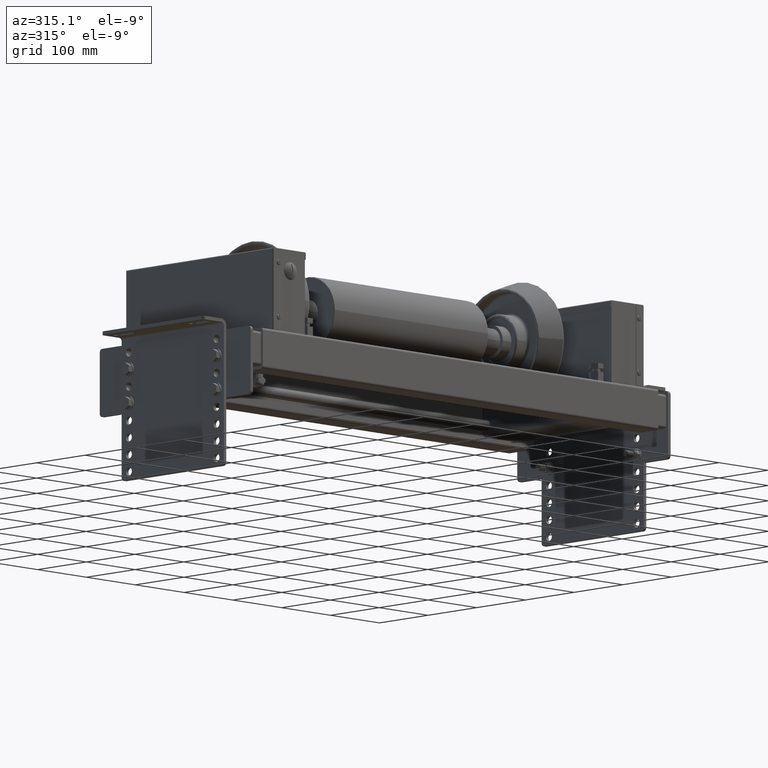
[diagram: clean part render]
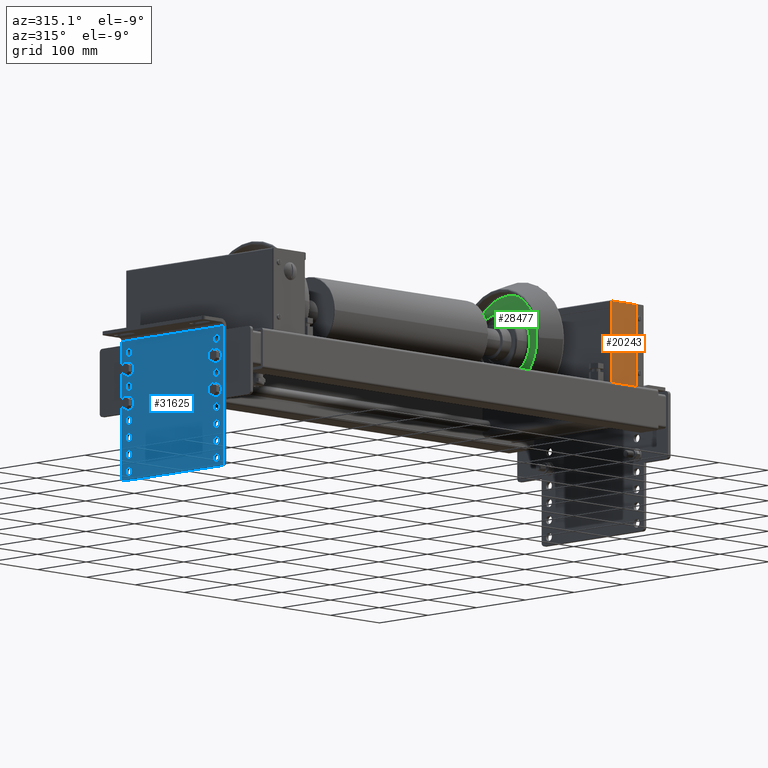
[diagram: same view with three faces highlighted in distinct colors, each labeled with its STEP entity id]
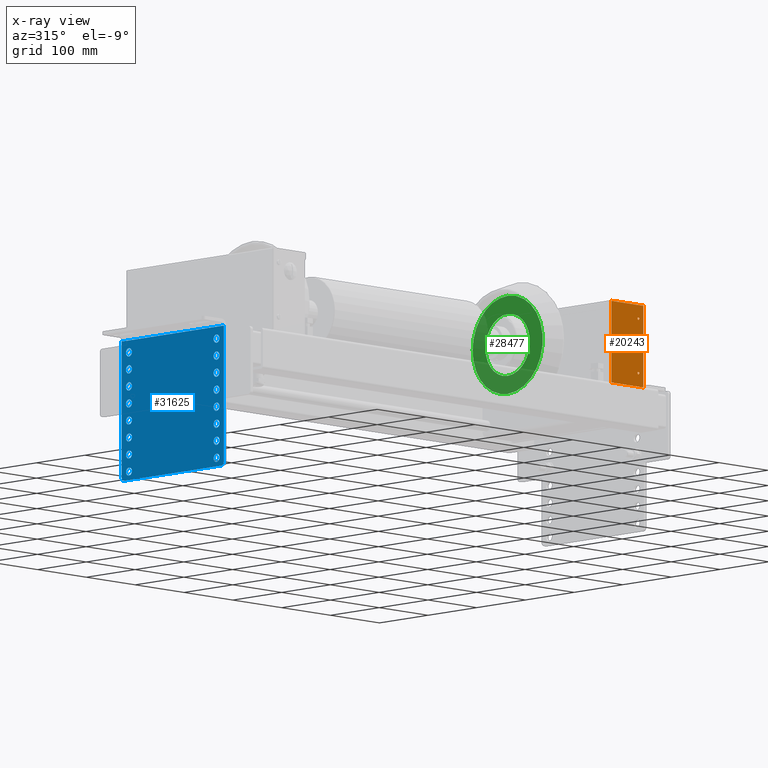
[diagram: x-ray of the same camera — body ghosted, the three highlighted faces saturated]
A machine part, auxiliary view with three faces highlighted in distinct colors.
The next image is the same camera in x-ray (body ghosted, the three faces saturated) — at least one of them is partly hidden behind the body in this view.
Their STEP definitions:

[orange] entity #20243 — the highlighted planar face has unit normal (0, -1, 0).
#19163=CARTESIAN_POINT('',(-150.000000000000910,65.000000000000227,55.250000000000000));
#19164=VERTEX_POINT('',#19163);
#19173=CARTESIAN_POINT('',(-150.000000000000910,65.000000000000227,51.750000000000000));
#19174=VERTEX_POINT('',#19173);
#19175=CARTESIAN_POINT('',(-150.000000000000910,65.000000000000227,53.500000000000000));
#19176=DIRECTION('',(1.0,0.0,0.0));
#19177=DIRECTION('',(0.0,0.0,1.0));
#19178=AXIS2_PLACEMENT_3D('',#19175,#19176,#19177);
#19179=CIRCLE('',#19178,1.750000000000000);
#19180=EDGE_CURVE('',#19174,#19164,#19179,.T.);
#19247=CARTESIAN_POINT('',(-150.000000000000940,-14.999999999999773,55.250000000000000));
#19248=VERTEX_POINT('',#19247);
#19257=CARTESIAN_POINT('',(-150.000000000000880,-14.999999999999773,51.750000000000000));
#19258=VERTEX_POINT('',#19257);
#19259=CARTESIAN_POINT('',(-150.000000000000880,-14.999999999999773,53.500000000000000));
#19260=DIRECTION('',(1.0,0.0,0.0));
#19261=DIRECTION('',(0.0,0.0,1.0));
#19262=AXIS2_PLACEMENT_3D('',#19259,#19260,#19261);
#19263=CIRCLE('',#19262,1.750000000000000);
#19264=EDGE_CURVE('',#19258,#19248,#19263,.T.);
#19484=CARTESIAN_POINT('',(-150.000000000000880,-14.999999999999773,53.500000000000000));
#19485=DIRECTION('',(1.0,0.0,0.0));
#19486=DIRECTION('',(0.0,0.0,1.0));
#19487=AXIS2_PLACEMENT_3D('',#19484,#19485,#19486);
#19488=CIRCLE('',#19487,1.750000000000000);
#19489=EDGE_CURVE('',#19248,#19258,#19488,.T.);
#19532=CARTESIAN_POINT('',(-150.000000000000910,65.000000000000227,53.500000000000000));
#19533=DIRECTION('',(1.0,0.0,0.0));
#19534=DIRECTION('',(0.0,0.0,1.0));
#19535=AXIS2_PLACEMENT_3D('',#19532,#19533,#19534);
#19536=CIRCLE('',#19535,1.750000000000000);
#19537=EDGE_CURVE('',#19164,#19174,#19536,.T.);
#19698=CARTESIAN_POINT('',(-150.000000000000910,-34.999999999999773,63.500000000000000));
#19699=VERTEX_POINT('',#19698);
#19700=CARTESIAN_POINT('',(-150.000000000000910,85.000000000000227,63.500000000000000));
#19701=VERTEX_POINT('',#19700);
#19702=CARTESIAN_POINT('',(-150.000000000000910,-34.999999999999773,63.500000000000000));
#19703=DIRECTION('',(0.0,1.0,0.0));
#19704=VECTOR('',#19703,120.0);
#19705=LINE('',#19702,#19704);
#19706=EDGE_CURVE('',#19699,#19701,#19705,.T.);
#19842=CARTESIAN_POINT('',(-150.000000000000910,85.000000000000227,-1.500000000000000));
#19843=VERTEX_POINT('',#19842);
#19850=CARTESIAN_POINT('',(-150.000000000000910,85.000000000000227,-1.500000000000000));
#19851=DIRECTION('',(0.0,0.0,1.0));
#19852=VECTOR('',#19851,65.0);
#19853=LINE('',#19850,#19852);
#19854=EDGE_CURVE('',#19843,#19701,#19853,.T.);
#19875=CARTESIAN_POINT('',(-150.000000000000910,-34.999999999999773,-1.500000000000000));
#19876=VERTEX_POINT('',#19875);
#19883=CARTESIAN_POINT('',(-150.000000000000910,85.000000000000227,-1.500000000000000));
#19884=DIRECTION('',(0.0,-1.0,0.0));
#19885=VECTOR('',#19884,120.0);
#19886=LINE('',#19883,#19885);
#19887=EDGE_CURVE('',#19843,#19876,#19886,.T.);
#20215=CARTESIAN_POINT('',(-150.000000000000910,-34.999999999999773,-1.500000000000000));
#20216=DIRECTION('',(0.0,0.0,1.0));
#20217=VECTOR('',#20216,65.0);
#20218=LINE('',#20215,#20217);
#20219=EDGE_CURVE('',#19876,#19699,#20218,.T.);
#20224=CARTESIAN_POINT('',(-150.000000000000910,-94.999999999999773,-1.500000000000000));
#20225=DIRECTION('',(-1.0,0.0,0.0));
#20226=DIRECTION('',(0.0,0.0,1.0));
#20227=AXIS2_PLACEMENT_3D('',#20224,#20225,#20226);
#20228=PLANE('',#20227);
#20229=ORIENTED_EDGE('',*,*,#19854,.F.);
#20230=ORIENTED_EDGE('',*,*,#19887,.T.);
#20231=ORIENTED_EDGE('',*,*,#20219,.T.);
#20232=ORIENTED_EDGE('',*,*,#19706,.T.);
#20233=EDGE_LOOP('',(#20229,#20230,#20231,#20232));
#20234=FACE_OUTER_BOUND('',#20233,.T.);
#20235=ORIENTED_EDGE('',*,*,#19489,.T.);
#20236=ORIENTED_EDGE('',*,*,#19264,.T.);
#20237=EDGE_LOOP('',(#20235,#20236));
#20238=FACE_BOUND('',#20237,.T.);
#20239=ORIENTED_EDGE('',*,*,#19537,.T.);
#20240=ORIENTED_EDGE('',*,*,#19180,.T.);
#20241=EDGE_LOOP('',(#20239,#20240));
#20242=FACE_BOUND('',#20241,.T.);
#20243=ADVANCED_FACE('',(#20234,#20238,#20242),#20228,.T.);

[blue] entity #31625 — the highlighted planar face has unit normal (-1, -0, -0).
#30377=CARTESIAN_POINT('',(-80.957093014422583,-114.089066365486590,4.500000000000000));
#30378=VERTEX_POINT('',#30377);
#30387=CARTESIAN_POINT('',(-92.957093014422583,-114.089066365486590,4.500000000000000));
#30388=VERTEX_POINT('',#30387);
#30389=CARTESIAN_POINT('',(-86.957093014422583,-114.089066365486590,4.500000000000000));
#30390=DIRECTION('',(0.0,0.0,-1.0));
#30391=DIRECTION('',(1.0,0.0,0.0));
#30392=AXIS2_PLACEMENT_3D('',#30389,#30390,#30391);
#30393=CIRCLE('',#30392,6.0);
#30394=EDGE_CURVE('',#30388,#30378,#30393,.T.);
#30419=CARTESIAN_POINT('',(99.042906985577417,-114.089066365486590,4.500000000000000));
#30420=VERTEX_POINT('',#30419);
#30429=CARTESIAN_POINT('',(87.042906985577417,-114.089066365486590,4.500000000000000));
#30430=VERTEX_POINT('',#30429);
#30431=CARTESIAN_POINT('',(93.042906985577417,-114.089066365486590,4.500000000000000));
#30432=DIRECTION('',(0.0,0.0,-1.0));
#30433=DIRECTION('',(1.0,0.0,0.0));
#30434=AXIS2_PLACEMENT_3D('',#30431,#30432,#30433);
#30435=CIRCLE('',#30434,6.0);
#30436=EDGE_CURVE('',#30430,#30420,#30435,.T.);
#30461=CARTESIAN_POINT('',(-80.957093014422583,-89.089066365486588,4.500000000000000));
#30462=VERTEX_POINT('',#30461);
#30471=CARTESIAN_POINT('',(-92.957093014422583,-89.089066365486588,4.500000000000000));
#30472=VERTEX_POINT('',#30471);
#30473=CARTESIAN_POINT('',(-86.957093014422583,-89.089066365486588,4.500000000000000));
#30474=DIRECTION('',(0.0,0.0,-1.0));
#30475=DIRECTION('',(1.0,0.0,0.0));
#30476=AXIS2_PLACEMENT_3D('',#30473,#30474,#30475);
#30477=CIRCLE('',#30476,6.0);
#30478=EDGE_CURVE('',#30472,#30462,#30477,.T.);
#30503=CARTESIAN_POINT('',(99.042906985577417,-89.089066365486588,4.500000000000000));
#30504=VERTEX_POINT('',#30503);
#30513=CARTESIAN_POINT('',(87.042906985577417,-89.089066365486588,4.500000000000000));
#30514=VERTEX_POINT('',#30513);
#30515=CARTESIAN_POINT('',(93.042906985577417,-89.089066365486588,4.500000000000000));
#30516=DIRECTION('',(0.0,0.0,-1.0));
#30517=DIRECTION('',(1.0,0.0,0.0));
#30518=AXIS2_PLACEMENT_3D('',#30515,#30516,#30517);
#30519=CIRCLE('',#30518,6.0);
#30520=EDGE_CURVE('',#30514,#30504,#30519,.T.);
#30545=CARTESIAN_POINT('',(-80.957093014422568,-64.089066365486588,4.500000000000000));
#30546=VERTEX_POINT('',#30545);
#30555=CARTESIAN_POINT('',(-92.957093014422568,-64.089066365486588,4.500000000000000));
#30556=VERTEX_POINT('',#30555);
#30557=CARTESIAN_POINT('',(-86.957093014422568,-64.089066365486588,4.500000000000000));
#30558=DIRECTION('',(0.0,0.0,-1.0));
#30559=DIRECTION('',(1.0,0.0,0.0));
#30560=AXIS2_PLACEMENT_3D('',#30557,#30558,#30559);
#30561=CIRCLE('',#30560,6.0);
#30562=EDGE_CURVE('',#30556,#30546,#30561,.T.);
#30587=CARTESIAN_POINT('',(99.042906985577417,-64.089066365486588,4.500000000000000));
#30588=VERTEX_POINT('',#30587);
#30597=CARTESIAN_POINT('',(87.042906985577417,-64.089066365486588,4.500000000000000));
#30598=VERTEX_POINT('',#30597);
#30599=CARTESIAN_POINT('',(93.042906985577417,-64.089066365486588,4.500000000000000));
#30600=DIRECTION('',(0.0,0.0,-1.0));
#30601=DIRECTION('',(1.0,0.0,0.0));
#30602=AXIS2_PLACEMENT_3D('',#30599,#30600,#30601);
#30603=CIRCLE('',#30602,6.0);
#30604=EDGE_CURVE('',#30598,#30588,#30603,.T.);
#30629=CARTESIAN_POINT('',(-80.957093014422568,-39.089066365486588,4.500000000000000));
#30630=VERTEX_POINT('',#30629);
#30639=CARTESIAN_POINT('',(-92.957093014422568,-39.089066365486588,4.500000000000000));
#30640=VERTEX_POINT('',#30639);
#30641=CARTESIAN_POINT('',(-86.957093014422568,-39.089066365486588,4.500000000000000));
#30642=DIRECTION('',(0.0,0.0,-1.0));
#30643=DIRECTION('',(1.0,0.0,0.0));
#30644=AXIS2_PLACEMENT_3D('',#30641,#30642,#30643);
#30645=CIRCLE('',#30644,6.0);
#30646=EDGE_CURVE('',#30640,#30630,#30645,.T.);
#30671=CARTESIAN_POINT('',(99.042906985577446,-39.089066365486588,4.500000000000000));
#30672=VERTEX_POINT('',#30671);
#30681=CARTESIAN_POINT('',(87.042906985577446,-39.089066365486588,4.500000000000000));
#30682=VERTEX_POINT('',#30681);
#30683=CARTESIAN_POINT('',(93.042906985577446,-39.089066365486588,4.500000000000000));
#30684=DIRECTION('',(0.0,0.0,-1.0));
#30685=DIRECTION('',(1.0,0.0,0.0));
#30686=AXIS2_PLACEMENT_3D('',#30683,#30684,#30685);
#30687=CIRCLE('',#30686,6.0);
#30688=EDGE_CURVE('',#30682,#30672,#30687,.T.);
#30713=CARTESIAN_POINT('',(-80.957093014422554,-14.089066365486588,4.500000000000000));
#30714=VERTEX_POINT('',#30713);
#30723=CARTESIAN_POINT('',(-92.957093014422554,-14.089066365486588,4.500000000000000));
#30724=VERTEX_POINT('',#30723);
#30725=CARTESIAN_POINT('',(-86.957093014422554,-14.089066365486588,4.500000000000000));
#30726=DIRECTION('',(0.0,0.0,-1.0));
#30727=DIRECTION('',(1.0,0.0,0.0));
#30728=AXIS2_PLACEMENT_3D('',#30725,#30726,#30727);
#30729=CIRCLE('',#30728,6.0);
#30730=EDGE_CURVE('',#30724,#30714,#30729,.T.);
#30755=CARTESIAN_POINT('',(99.042906985577446,-14.089066365486588,4.500000000000000));
#30756=VERTEX_POINT('',#30755);
#30765=CARTESIAN_POINT('',(87.042906985577446,-14.089066365486588,4.500000000000000));
#30766=VERTEX_POINT('',#30765);
#30767=CARTESIAN_POINT('',(93.042906985577446,-14.089066365486588,4.500000000000000));
#30768=DIRECTION('',(0.0,0.0,-1.0));
#30769=DIRECTION('',(1.0,0.0,0.0));
#30770=AXIS2_PLACEMENT_3D('',#30767,#30768,#30769);
#30771=CIRCLE('',#30770,6.0);
#30772=EDGE_CURVE('',#30766,#30756,#30771,.T.);
#30797=CARTESIAN_POINT('',(-80.957093014422554,10.910933634513412,4.500000000000000));
#30798=VERTEX_POINT('',#30797);
#30807=CARTESIAN_POINT('',(-92.957093014422554,10.910933634513412,4.500000000000000));
#30808=VERTEX_POINT('',#30807);
#30809=CARTESIAN_POINT('',(-86.957093014422554,10.910933634513412,4.500000000000000));
#30810=DIRECTION('',(0.0,0.0,-1.0));
#30811=DIRECTION('',(1.0,0.0,0.0));
#30812=AXIS2_PLACEMENT_3D('',#30809,#30810,#30811);
#30813=CIRCLE('',#30812,6.0);
#30814=EDGE_CURVE('',#30808,#30798,#30813,.T.);
#30839=CARTESIAN_POINT('',(99.042906985577446,10.910933634513412,4.500000000000000));
#30840=VERTEX_POINT('',#30839);
#30849=CARTESIAN_POINT('',(87.042906985577446,10.910933634513412,4.500000000000000));
#30850=VERTEX_POINT('',#30849);
#30851=CARTESIAN_POINT('',(93.042906985577446,10.910933634513412,4.500000000000000));
#30852=DIRECTION('',(0.0,0.0,-1.0));
#30853=DIRECTION('',(1.0,0.0,0.0));
#30854=AXIS2_PLACEMENT_3D('',#30851,#30852,#30853);
#30855=CIRCLE('',#30854,6.0);
#30856=EDGE_CURVE('',#30850,#30840,#30855,.T.);
#30881=CARTESIAN_POINT('',(-80.957093014422554,35.910933634513412,4.500000000000000));
#30882=VERTEX_POINT('',#30881);
#30891=CARTESIAN_POINT('',(-92.957093014422554,35.910933634513412,4.500000000000000));
#30892=VERTEX_POINT('',#30891);
#30893=CARTESIAN_POINT('',(-86.957093014422554,35.910933634513412,4.500000000000000));
#30894=DIRECTION('',(0.0,0.0,-1.0));
#30895=DIRECTION('',(1.0,0.0,0.0));
#30896=AXIS2_PLACEMENT_3D('',#30893,#30894,#30895);
#30897=CIRCLE('',#30896,6.0);
#30898=EDGE_CURVE('',#30892,#30882,#30897,.T.);
#30923=CARTESIAN_POINT('',(99.042906985577446,35.910933634513412,4.500000000000000));
#30924=VERTEX_POINT('',#30923);
#30933=CARTESIAN_POINT('',(87.042906985577446,35.910933634513412,4.500000000000000));
#30934=VERTEX_POINT('',#30933);
#30935=CARTESIAN_POINT('',(93.042906985577446,35.910933634513412,4.500000000000000));
#30936=DIRECTION('',(0.0,0.0,-1.0));
#30937=DIRECTION('',(1.0,0.0,0.0));
#30938=AXIS2_PLACEMENT_3D('',#30935,#30936,#30937);
#30939=CIRCLE('',#30938,6.0);
#30940=EDGE_CURVE('',#30934,#30924,#30939,.T.);
#30965=CARTESIAN_POINT('',(-80.957093014422540,60.910933634513412,4.500000000000000));
#30966=VERTEX_POINT('',#30965);
#30975=CARTESIAN_POINT('',(-92.957093014422540,60.910933634513412,4.500000000000000));
#30976=VERTEX_POINT('',#30975);
#30977=CARTESIAN_POINT('',(-86.957093014422540,60.910933634513412,4.500000000000000));
#30978=DIRECTION('',(0.0,0.0,-1.0));
#30979=DIRECTION('',(1.0,0.0,0.0));
#30980=AXIS2_PLACEMENT_3D('',#30977,#30978,#30979);
#30981=CIRCLE('',#30980,6.0);
#30982=EDGE_CURVE('',#30976,#30966,#30981,.T.);
#31007=CARTESIAN_POINT('',(99.042906985577446,60.910933634513412,4.500000000000000));
#31008=VERTEX_POINT('',#31007);
#31017=CARTESIAN_POINT('',(87.042906985577446,60.910933634513412,4.500000000000000));
#31018=VERTEX_POINT('',#31017);
#31019=CARTESIAN_POINT('',(93.042906985577446,60.910933634513412,4.500000000000000));
#31020=DIRECTION('',(0.0,0.0,-1.0));
#31021=DIRECTION('',(1.0,0.0,0.0));
#31022=AXIS2_PLACEMENT_3D('',#31019,#31020,#31021);
#31023=CIRCLE('',#31022,6.0);
#31024=EDGE_CURVE('',#31018,#31008,#31023,.T.);
#31049=CARTESIAN_POINT('',(108.042906985577450,-121.589066365486590,4.500000000000000));
#31050=VERTEX_POINT('',#31049);
#31051=CARTESIAN_POINT('',(103.042906985577450,-126.589066365486590,4.500000000000000));
#31052=VERTEX_POINT('',#31051);
#31053=CARTESIAN_POINT('',(103.042906985577450,-121.589066365486590,4.500000000000000));
#31054=DIRECTION('',(0.0,0.0,-1.000000000000000));
#31055=DIRECTION('',(0.707106781186547,-0.707106781186547,0.0));
#31056=AXIS2_PLACEMENT_3D('',#31053,#31054,#31055);
#31057=CIRCLE('',#31056,4.999999999999999);
#31058=EDGE_CURVE('',#31050,#31052,#31057,.T.);
#31133=CARTESIAN_POINT('',(108.042906985577450,78.410933634513441,4.500000000000000));
#31134=VERTEX_POINT('',#31133);
#31142=CARTESIAN_POINT('',(108.042906985577450,78.410933634513441,4.500000000000000));
#31143=DIRECTION('',(0.0,-1.0,0.0));
#31144=VECTOR('',#31143,200.000000000000030);
#31145=LINE('',#31142,#31144);
#31146=EDGE_CURVE('',#31134,#31050,#31145,.T.);
#31357=CARTESIAN_POINT('',(-96.957093014422583,-126.589066365486590,4.500000000000000));
#31358=VERTEX_POINT('',#31357);
#31359=CARTESIAN_POINT('',(-101.957093014422580,-121.589066365486590,4.500000000000000));
#31360=VERTEX_POINT('',#31359);
#31361=CARTESIAN_POINT('',(-96.957093014422583,-121.589066365486590,4.500000000000000));
#31362=DIRECTION('',(0.0,0.0,-1.000000000000000));
#31363=DIRECTION('',(-0.707106781186547,-0.707106781186547,0.0));
#31364=AXIS2_PLACEMENT_3D('',#31361,#31362,#31363);
#31365=CIRCLE('',#31364,4.999999999999999);
#31366=EDGE_CURVE('',#31358,#31360,#31365,.T.);
#31390=CARTESIAN_POINT('',(-101.957093014422580,78.410933634513441,4.500000000000000));
#31391=VERTEX_POINT('',#31390);
#31392=CARTESIAN_POINT('',(-101.957093014422580,-121.589066365486590,4.500000000000000));
#31393=DIRECTION('',(0.0,1.0,0.0));
#31394=VECTOR('',#31393,200.000000000000030);
#31395=LINE('',#31392,#31394);
#31396=EDGE_CURVE('',#31360,#31391,#31395,.T.);
#31442=CARTESIAN_POINT('',(3.042906985577439,-19.089066365486580,4.500000000000000));
#31443=DIRECTION('',(0.0,0.0,1.0));
#31444=DIRECTION('',(1.0,0.0,0.0));
#31445=AXIS2_PLACEMENT_3D('',#31442,#31443,#31444);
#31446=PLANE('',#31445);
#31447=ORIENTED_EDGE('',*,*,#31058,.F.);
#31448=ORIENTED_EDGE('',*,*,#31146,.F.);
#31449=CARTESIAN_POINT('',(-101.957093014422580,78.410933634513441,4.500000000000000));
#31450=DIRECTION('',(1.0,0.0,0.0));
#31451=VECTOR('',#31450,210.000000000000030);
#31452=LINE('',#31449,#31451);
#31453=EDGE_CURVE('',#31391,#31134,#31452,.T.);
#31454=ORIENTED_EDGE('',*,*,#31453,.F.);
#31455=ORIENTED_EDGE('',*,*,#31396,.F.);
#31456=ORIENTED_EDGE('',*,*,#31366,.F.);
#31457=CARTESIAN_POINT('',(103.042906985577450,-126.589066365486590,4.500000000000000));
#31458=DIRECTION('',(-1.0,0.0,0.0));
#31459=VECTOR('',#31458,200.000000000000030);
#31460=LINE('',#31457,#31459);
#31461=EDGE_CURVE('',#31052,#31358,#31460,.T.);
#31462=ORIENTED_EDGE('',*,*,#31461,.F.);
#31463=EDGE_LOOP('',(#31447,#31448,#31454,#31455,#31456,#31462));
#31464=FACE_OUTER_BOUND('',#31463,.T.);
#31465=CARTESIAN_POINT('',(-86.957093014422583,-114.089066365486590,4.500000000000000));
#31466=DIRECTION('',(0.0,0.0,-1.0));
#31467=DIRECTION('',(1.0,0.0,0.0));
#31468=AXIS2_PLACEMENT_3D('',#31465,#31466,#31467);
#31469=CIRCLE('',#31468,6.0);
#31470=EDGE_CURVE('',#30378,#30388,#31469,.T.);
#31471=ORIENTED_EDGE('',*,*,#31470,.T.);
#31472=ORIENTED_EDGE('',*,*,#30394,.T.);
#31473=EDGE_LOOP('',(#31471,#31472));
#31474=FACE_BOUND('',#31473,.T.);
#31475=CARTESIAN_POINT('',(93.042906985577417,-114.089066365486590,4.500000000000000));
#31476=DIRECTION('',(0.0,0.0,-1.0));
#31477=DIRECTION('',(1.0,0.0,0.0));
#31478=AXIS2_PLACEMENT_3D('',#31475,#31476,#31477);
#31479=CIRCLE('',#31478,6.0);
#31480=EDGE_CURVE('',#30420,#30430,#31479,.T.);
#31481=ORIENTED_EDGE('',*,*,#31480,.T.);
#31482=ORIENTED_EDGE('',*,*,#30436,.T.);
#31483=EDGE_LOOP('',(#31481,#31482));
#31484=FACE_BOUND('',#31483,.T.);
#31485=CARTESIAN_POINT('',(-86.957093014422583,-89.089066365486588,4.500000000000000));
#31486=DIRECTION('',(0.0,0.0,-1.0));
#31487=DIRECTION('',(1.0,0.0,0.0));
#31488=AXIS2_PLACEMENT_3D('',#31485,#31486,#31487);
#31489=CIRCLE('',#31488,6.0);
#31490=EDGE_CURVE('',#30462,#30472,#31489,.T.);
#31491=ORIENTED_EDGE('',*,*,#31490,.T.);
#31492=ORIENTED_EDGE('',*,*,#30478,.T.);
#31493=EDGE_LOOP('',(#31491,#31492));
#31494=FACE_BOUND('',#31493,.T.);
#31495=CARTESIAN_POINT('',(93.042906985577417,-89.089066365486588,4.500000000000000));
#31496=DIRECTION('',(0.0,0.0,-1.0));
#31497=DIRECTION('',(1.0,0.0,0.0));
#31498=AXIS2_PLACEMENT_3D('',#31495,#31496,#31497);
#31499=CIRCLE('',#31498,6.0);
#31500=EDGE_CURVE('',#30504,#30514,#31499,.T.);
#31501=ORIENTED_EDGE('',*,*,#31500,.T.);
#31502=ORIENTED_EDGE('',*,*,#30520,.T.);
#31503=EDGE_LOOP('',(#31501,#31502));
#31504=FACE_BOUND('',#31503,.T.);
#31505=CARTESIAN_POINT('',(-86.957093014422568,-64.089066365486588,4.500000000000000));
#31506=DIRECTION('',(0.0,0.0,-1.0));
#31507=DIRECTION('',(1.0,0.0,0.0));
#31508=AXIS2_PLACEMENT_3D('',#31505,#31506,#31507);
#31509=CIRCLE('',#31508,6.0);
#31510=EDGE_CURVE('',#30546,#30556,#31509,.T.);
#31511=ORIENTED_EDGE('',*,*,#31510,.T.);
#31512=ORIENTED_EDGE('',*,*,#30562,.T.);
#31513=EDGE_LOOP('',(#31511,#31512));
#31514=FACE_BOUND('',#31513,.T.);
#31515=CARTESIAN_POINT('',(93.042906985577417,-64.089066365486588,4.500000000000000));
#31516=DIRECTION('',(0.0,0.0,-1.0));
#31517=DIRECTION('',(1.0,0.0,0.0));
#31518=AXIS2_PLACEMENT_3D('',#31515,#31516,#31517);
#31519=CIRCLE('',#31518,6.0);
#31520=EDGE_CURVE('',#30588,#30598,#31519,.T.);
#31521=ORIENTED_EDGE('',*,*,#31520,.T.);
#31522=ORIENTED_EDGE('',*,*,#30604,.T.);
#31523=EDGE_LOOP('',(#31521,#31522));
#31524=FACE_BOUND('',#31523,.T.);
#31525=CARTESIAN_POINT('',(-86.957093014422568,-39.089066365486588,4.500000000000000));
#31526=DIRECTION('',(0.0,0.0,-1.0));
#31527=DIRECTION('',(1.0,0.0,0.0));
#31528=AXIS2_PLACEMENT_3D('',#31525,#31526,#31527);
#31529=CIRCLE('',#31528,6.0);
#31530=EDGE_CURVE('',#30630,#30640,#31529,.T.);
#31531=ORIENTED_EDGE('',*,*,#31530,.T.);
#31532=ORIENTED_EDGE('',*,*,#30646,.T.);
#31533=EDGE_LOOP('',(#31531,#31532));
#31534=FACE_BOUND('',#31533,.T.);
#31535=CARTESIAN_POINT('',(93.042906985577446,-39.089066365486588,4.500000000000000));
#31536=DIRECTION('',(0.0,0.0,-1.0));
#31537=DIRECTION('',(1.0,0.0,0.0));
#31538=AXIS2_PLACEMENT_3D('',#31535,#31536,#31537);
#31539=CIRCLE('',#31538,6.0);
#31540=EDGE_CURVE('',#30672,#30682,#31539,.T.);
#31541=ORIENTED_EDGE('',*,*,#31540,.T.);
#31542=ORIENTED_EDGE('',*,*,#30688,.T.);
#31543=EDGE_LOOP('',(#31541,#31542));
#31544=FACE_BOUND('',#31543,.T.);
#31545=CARTESIAN_POINT('',(-86.957093014422554,-14.089066365486588,4.500000000000000));
#31546=DIRECTION('',(0.0,0.0,-1.0));
#31547=DIRECTION('',(1.0,0.0,0.0));
#31548=AXIS2_PLACEMENT_3D('',#31545,#31546,#31547);
#31549=CIRCLE('',#31548,6.0);
#31550=EDGE_CURVE('',#30714,#30724,#31549,.T.);
#31551=ORIENTED_EDGE('',*,*,#31550,.T.);
#31552=ORIENTED_EDGE('',*,*,#30730,.T.);
#31553=EDGE_LOOP('',(#31551,#31552));
#31554=FACE_BOUND('',#31553,.T.);
#31555=CARTESIAN_POINT('',(93.042906985577446,-14.089066365486588,4.500000000000000));
#31556=DIRECTION('',(0.0,0.0,-1.0));
#31557=DIRECTION('',(1.0,0.0,0.0));
#31558=AXIS2_PLACEMENT_3D('',#31555,#31556,#31557);
#31559=CIRCLE('',#31558,6.0);
#31560=EDGE_CURVE('',#30756,#30766,#31559,.T.);
#31561=ORIENTED_EDGE('',*,*,#31560,.T.);
#31562=ORIENTED_EDGE('',*,*,#30772,.T.);
#31563=EDGE_LOOP('',(#31561,#31562));
#31564=FACE_BOUND('',#31563,.T.);
#31565=CARTESIAN_POINT('',(-86.957093014422554,10.910933634513412,4.500000000000000));
#31566=DIRECTION('',(0.0,0.0,-1.0));
#31567=DIRECTION('',(1.0,0.0,0.0));
#31568=AXIS2_PLACEMENT_3D('',#31565,#31566,#31567);
#31569=CIRCLE('',#31568,6.0);
#31570=EDGE_CURVE('',#30798,#30808,#31569,.T.);
#31571=ORIENTED_EDGE('',*,*,#31570,.T.);
#31572=ORIENTED_EDGE('',*,*,#30814,.T.);
#31573=EDGE_LOOP('',(#31571,#31572));
#31574=FACE_BOUND('',#31573,.T.);
#31575=CARTESIAN_POINT('',(93.042906985577446,10.910933634513412,4.500000000000000));
#31576=DIRECTION('',(0.0,0.0,-1.0));
#31577=DIRECTION('',(1.0,0.0,0.0));
#31578=AXIS2_PLACEMENT_3D('',#31575,#31576,#31577);
#31579=CIRCLE('',#31578,6.0);
#31580=EDGE_CURVE('',#30840,#30850,#31579,.T.);
#31581=ORIENTED_EDGE('',*,*,#31580,.T.);
#31582=ORIENTED_EDGE('',*,*,#30856,.T.);
#31583=EDGE_LOOP('',(#31581,#31582));
#31584=FACE_BOUND('',#31583,.T.);
#31585=CARTESIAN_POINT('',(-86.957093014422554,35.910933634513412,4.500000000000000));
#31586=DIRECTION('',(0.0,0.0,-1.0));
#31587=DIRECTION('',(1.0,0.0,0.0));
#31588=AXIS2_PLACEMENT_3D('',#31585,#31586,#31587);
#31589=CIRCLE('',#31588,6.0);
#31590=EDGE_CURVE('',#30882,#30892,#31589,.T.);
#31591=ORIENTED_EDGE('',*,*,#31590,.T.);
#31592=ORIENTED_EDGE('',*,*,#30898,.T.);
#31593=EDGE_LOOP('',(#31591,#31592));
#31594=FACE_BOUND('',#31593,.T.);
#31595=CARTESIAN_POINT('',(93.042906985577446,35.910933634513412,4.500000000000000));
#31596=DIRECTION('',(0.0,0.0,-1.0));
#31597=DIRECTION('',(1.0,0.0,0.0));
#31598=AXIS2_PLACEMENT_3D('',#31595,#31596,#31597);
#31599=CIRCLE('',#31598,6.0);
#31600=EDGE_CURVE('',#30924,#30934,#31599,.T.);
#31601=ORIENTED_EDGE('',*,*,#31600,.T.);
#31602=ORIENTED_EDGE('',*,*,#30940,.T.);
#31603=EDGE_LOOP('',(#31601,#31602));
#31604=FACE_BOUND('',#31603,.T.);
#31605=CARTESIAN_POINT('',(-86.957093014422540,60.910933634513412,4.500000000000000));
#31606=DIRECTION('',(0.0,0.0,-1.0));
#31607=DIRECTION('',(1.0,0.0,0.0));
#31608=AXIS2_PLACEMENT_3D('',#31605,#31606,#31607);
#31609=CIRCLE('',#31608,6.0);
#31610=EDGE_CURVE('',#30966,#30976,#31609,.T.);
#31611=ORIENTED_EDGE('',*,*,#31610,.T.);
#31612=ORIENTED_EDGE('',*,*,#30982,.T.);
#31613=EDGE_LOOP('',(#31611,#31612));
#31614=FACE_BOUND('',#31613,.T.);
#31615=CARTESIAN_POINT('',(93.042906985577446,60.910933634513412,4.500000000000000));
#31616=DIRECTION('',(0.0,0.0,-1.0));
#31617=DIRECTION('',(1.0,0.0,0.0));
#31618=AXIS2_PLACEMENT_3D('',#31615,#31616,#31617);
#31619=CIRCLE('',#31618,6.0);
#31620=EDGE_CURVE('',#31008,#31018,#31619,.T.);
#31621=ORIENTED_EDGE('',*,*,#31620,.T.);
#31622=ORIENTED_EDGE('',*,*,#31024,.T.);
#31623=EDGE_LOOP('',(#31621,#31622));
#31624=FACE_BOUND('',#31623,.T.);
#31625=ADVANCED_FACE('',(#31464,#31474,#31484,#31494,#31504,#31514,#31524,#31534,#31544,#31554,#31564,#31574,#31584,#31594,#31604,#31614,#31624),#31446,.T.);

[green] entity #28477 — the highlighted planar face has unit normal (-1, 0, -0).
#27745=CARTESIAN_POINT('',(-2.999999999999972,0.0,-72.0));
#27746=VERTEX_POINT('',#27745);
#27756=CARTESIAN_POINT('',(-2.999999999999972,72.0,0.0));
#27757=VERTEX_POINT('',#27756);
#27758=CARTESIAN_POINT('',(-2.999999999999972,0.0,0.0));
#27759=DIRECTION('',(1.0,0.0,0.0));
#27760=DIRECTION('',(0.0,1.0,0.0));
#27761=AXIS2_PLACEMENT_3D('',#27758,#27759,#27760);
#27762=CIRCLE('',#27761,72.0);
#27763=EDGE_CURVE('',#27746,#27757,#27762,.T.);
#27765=CARTESIAN_POINT('',(-2.999999999999972,-8.817457E-015,72.0));
#27766=VERTEX_POINT('',#27765);
#27767=CARTESIAN_POINT('',(-2.999999999999972,0.0,0.0));
#27768=DIRECTION('',(1.0,0.0,0.0));
#27769=DIRECTION('',(0.0,1.0,0.0));
#27770=AXIS2_PLACEMENT_3D('',#27767,#27768,#27769);
#27771=CIRCLE('',#27770,72.0);
#27772=EDGE_CURVE('',#27757,#27766,#27771,.T.);
#27847=CARTESIAN_POINT('',(-3.0,0.0,-45.500000000000000));
#27848=VERTEX_POINT('',#27847);
#27874=CARTESIAN_POINT('',(-3.0,-5.572143E-015,45.500000000000000));
#27875=VERTEX_POINT('',#27874);
#27883=CARTESIAN_POINT('',(-3.0,45.500000000000000,0.0));
#27884=VERTEX_POINT('',#27883);
#27885=CARTESIAN_POINT('',(-3.0,0.0,0.0));
#27886=DIRECTION('',(1.0,0.0,0.0));
#27887=DIRECTION('',(0.0,1.0,0.0));
#27888=AXIS2_PLACEMENT_3D('',#27885,#27886,#27887);
#27889=CIRCLE('',#27888,45.500000000000000);
#27890=EDGE_CURVE('',#27884,#27875,#27889,.T.);
#27892=CARTESIAN_POINT('',(-3.0,0.0,0.0));
#27893=DIRECTION('',(1.0,0.0,0.0));
#27894=DIRECTION('',(0.0,1.0,0.0));
#27895=AXIS2_PLACEMENT_3D('',#27892,#27893,#27894);
#27896=CIRCLE('',#27895,45.500000000000000);
#27897=EDGE_CURVE('',#27848,#27884,#27896,.T.);
#28443=CARTESIAN_POINT('',(-3.0,0.0,0.0));
#28444=DIRECTION('',(1.0,0.0,0.0));
#28445=DIRECTION('',(0.0,1.0,0.0));
#28446=AXIS2_PLACEMENT_3D('',#28443,#28444,#28445);
#28447=CIRCLE('',#28446,45.500000000000000);
#28448=EDGE_CURVE('',#27875,#27848,#28447,.T.);
#28456=CARTESIAN_POINT('',(-2.999999999999986,58.750000000000000,0.0));
#28457=DIRECTION('',(-1.0,0.0,0.0));
#28458=DIRECTION('',(0.0,0.0,1.0));
#28459=AXIS2_PLACEMENT_3D('',#28456,#28457,#28458);
#28460=PLANE('',#28459);
#28461=ORIENTED_EDGE('',*,*,#27772,.F.);
#28462=ORIENTED_EDGE('',*,*,#27763,.F.);
#28463=CARTESIAN_POINT('',(-2.999999999999972,0.0,0.0));
#28464=DIRECTION('',(1.0,0.0,0.0));
#28465=DIRECTION('',(0.0,1.0,0.0));
#28466=AXIS2_PLACEMENT_3D('',#28463,#28464,#28465);
#28467=CIRCLE('',#28466,72.0);
#28468=EDGE_CURVE('',#27766,#27746,#28467,.T.);
#28469=ORIENTED_EDGE('',*,*,#28468,.F.);
#28470=EDGE_LOOP('',(#28461,#28462,#28469));
#28471=FACE_OUTER_BOUND('',#28470,.T.);
#28472=ORIENTED_EDGE('',*,*,#27890,.T.);
#28473=ORIENTED_EDGE('',*,*,#28448,.T.);
#28474=ORIENTED_EDGE('',*,*,#27897,.T.);
#28475=EDGE_LOOP('',(#28472,#28473,#28474));
#28476=FACE_BOUND('',#28475,.T.);
#28477=ADVANCED_FACE('',(#28471,#28476),#28460,.T.);